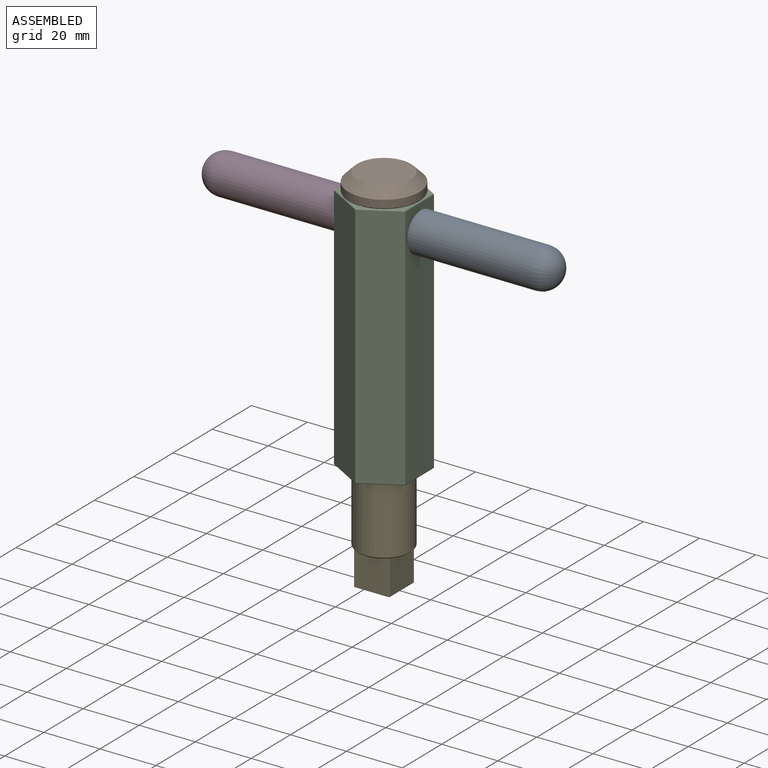
[diagram: assembled view]
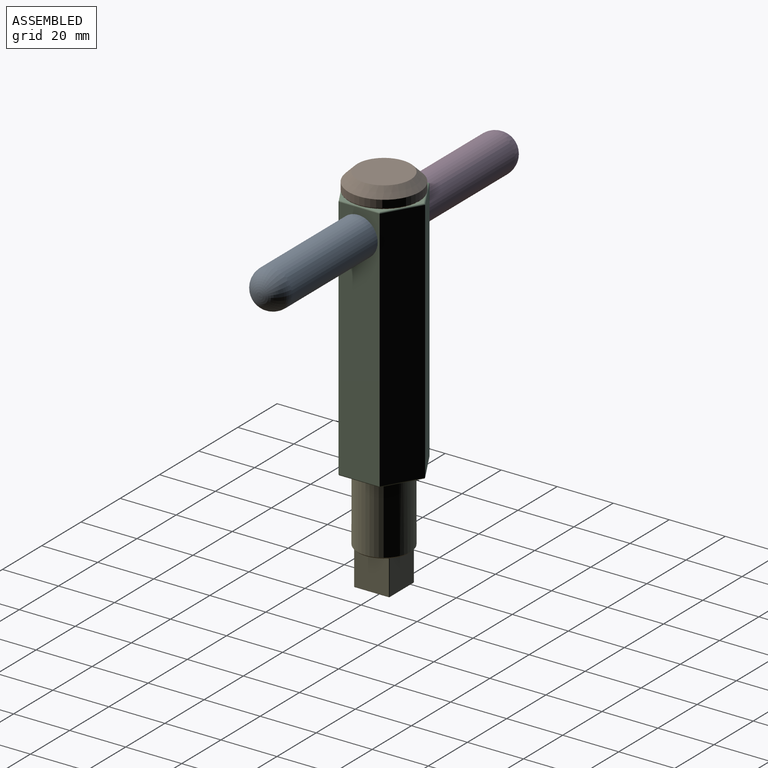
[diagram: assembled view, second angle]
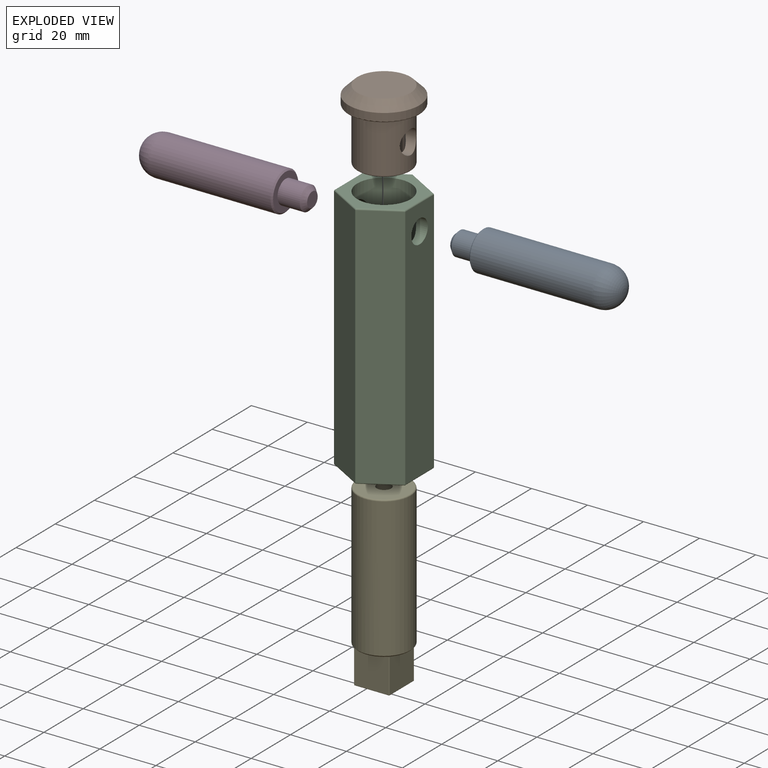
[diagram: exploded view]
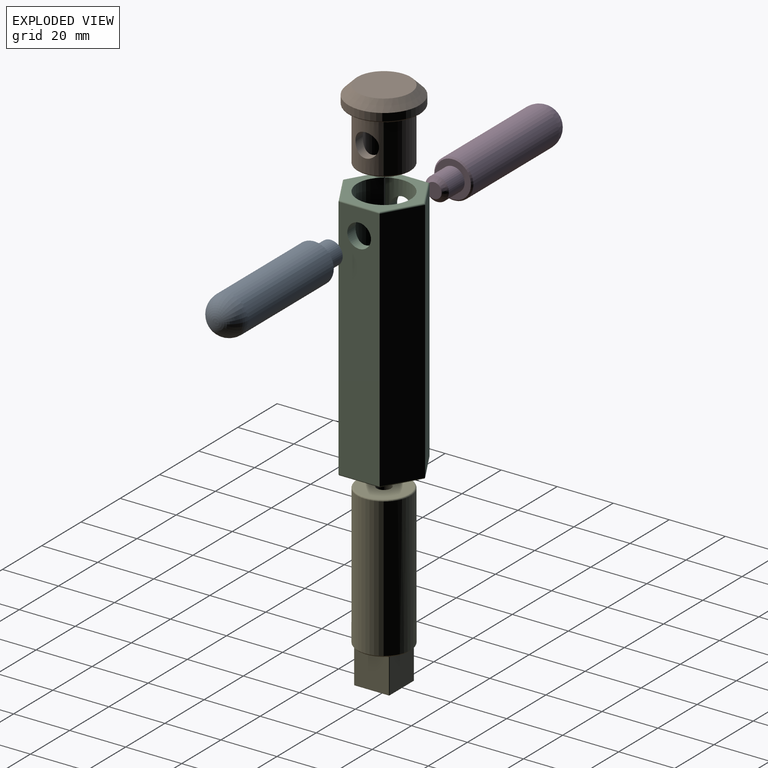
[diagram: exploded view, second angle]
ASSEMBLY  parts=5 mates=4
PART A: 8 faces, bbox 60.3x14x14 mm
  f0: cylinder r=4.22mm len=8.43mm, axis (1,0,0), area 212mm2, adj f4,f5
  f1: plane 5.39x5.38mm, normal (-1,0,0), area 22.8mm2, adj f5
  f2: cylinder r=6.99mm len=43.41mm, axis (-1,0,0), area 1905.1mm2, adj f6,f7
  f3: plane 0.2x0.2mm, normal (1,0,0), area 0mm2, adj f6
  f4: plane 12.95x12.95mm, normal (-1,0,0), area 75.9mm2, adj f0,f7
  f5: cone r=2.69mm half-angle=45deg, axis (1,0,0), area 46.8mm2, adj f0,f1
  f6: torus R=0.1mm, axis (1,0,0), area 304.6mm2, adj f2,f3
  f7: cone r=6.48mm half-angle=45deg, axis (1,0,0), area 30.4mm2, adj f2,f4
PART B: 12 faces, bbox 27.5x27.5x25.4 mm
  f0: cylinder r=6.35mm len=19.05mm, axis (0,0,1), area 640.9mm2, adj f2,f6,f7,f8
  f1: cylinder r=9.53mm len=19.05mm, axis (0,0,1), area 994.9mm2, adj f3,f7,f8,f11
  f2: plane 18.03x18.03mm, normal (0,0,-1), area 128.8mm2, adj f0,f11
  f3: plane 24.38x24.38mm, normal (0,0,-1), area 182mm2, adj f1,f10
  f4: plane 19.05x19.05mm, normal (0,0,1), area 285mm2, adj f9
  f5: cylinder r=12.7mm len=25.4mm, axis (0,0,-1), area 212.8mm2, adj f9,f10
  f6: plane 12.7x12.7mm, normal (0,0,-1), area 126.7mm2, adj f0
  f7: cylinder r=4.22mm len=8.43mm, axis (-1,0,0), area 91.7mm2, adj f0,f1
  f8: cylinder r=4.22mm len=8.43mm, axis (-1,0,0), area 91.7mm2, adj f0,f1
  f9: cone r=9.53mm half-angle=45deg, axis (0,0,-1), area 313.5mm2, adj f4,f5
  f10: torus R=12.19mm, axis (0,0,1), area 62.7mm2, adj f3,f5
  f11: torus R=9.02mm, axis (0,0,1), area 46.8mm2, adj f1,f2
PART C: 28 faces, bbox 25.4x29.3x88.9 mm
  f0: cylinder r=9.53mm len=50.8mm, axis (0,0,-1), area 2925.5mm2, adj f1,f12,f13,f14
  f1: plane 19.05x19.05mm, normal (0,0,1), area 264.6mm2, adj f0,f11
  f2: plane 87.88x14.66mm, normal (1,0,0), area 1232.9mm2, adj f3,f7,f13,f16,f24
  f3: plane 87.88x12.7mm, normal (0.5,0.87,0), area 1288.8mm2, adj f2,f4,f15,f22
  f4: plane 87.88x12.7mm, normal (-0.5,0.87,0), area 1288.8mm2, adj f3,f5,f17,f21
  f5: plane 87.88x14.66mm, normal (-1,0,0), area 1232.9mm2, adj f4,f6,f14,f19,f23
  f6: plane 87.88x12.7mm, normal (-0.5,-0.87,0), area 1288.8mm2, adj f5,f7,f20,f25
  f7: plane 87.88x12.7mm, normal (0.5,-0.87,0), area 1288.8mm2, adj f2,f6,f18,f26
  f8: cylinder r=9.53mm len=24.89mm, axis (0,0,-1), area 1489.7mm2, adj f10,f27
  f9: plane 28.16x24.38mm, normal (0,0,-1), area 198.7mm2, adj f21,f22,f23,f24,f25,f26,f27
  f10: plane 19.05x19.05mm, normal (0,0,-1), area 264.6mm2, adj f8,f11
  f11: cylinder r=2.55mm len=12.7mm, axis (0,0,-1), area 203.7mm2, adj f1,f10
  f12: plane 28.16x24.38mm, normal (0,0,1), area 229.9mm2, adj f0,f15,f16,f17,f18,f19,f20
  f13: cylinder r=4.22mm len=8.43mm, axis (-1,0,0), area 97mm2, adj f0,f2
  f14: cylinder r=4.22mm len=8.43mm, axis (-1,0,0), area 97mm2, adj f0,f5
  f15: cylinder r=0.51mm len=12.95mm, axis (0.87,-0.5,0), area 11.5mm2, adj f3,f12,f16,f17
  f16: cylinder r=0.51mm len=14.66mm, axis (0,-1,0), area 11.5mm2, adj f2,f12,f15,f18
  f17: cylinder r=0.51mm len=12.95mm, axis (0.87,0.5,0), area 11.5mm2, adj f4,f12,f15,f19
  f18: cylinder r=0.51mm len=12.95mm, axis (-0.87,-0.5,0), area 11.5mm2, adj f7,f12,f16,f20
  f19: cylinder r=0.51mm len=14.66mm, axis (0,1,0), area 11.5mm2, adj f5,f12,f17,f20
  f20: cylinder r=0.51mm len=12.95mm, axis (-0.87,0.5,0), area 11.5mm2, adj f6,f12,f18,f19
  f21: cylinder r=0.51mm len=12.95mm, axis (-0.87,-0.5,0), area 11.5mm2, adj f4,f9,f22,f23
  f22: cylinder r=0.51mm len=12.95mm, axis (-0.87,0.5,0), area 11.5mm2, adj f3,f9,f21,f24
  f23: cylinder r=0.51mm len=14.66mm, axis (0,-1,0), area 11.5mm2, adj f5,f9,f21,f25
  f24: cylinder r=0.51mm len=14.66mm, axis (0,1,0), area 11.5mm2, adj f2,f9,f22,f26
  f25: cylinder r=0.51mm len=12.95mm, axis (0.87,-0.5,0), area 11.5mm2, adj f6,f9,f23,f26
  f26: cylinder r=0.51mm len=12.95mm, axis (0.87,0.5,0), area 11.5mm2, adj f7,f9,f24,f25
  f27: torus R=10.03mm, axis (0,0,1), area 48.7mm2, adj f8,f9
PART D: 8 faces, bbox 60.3x14x14 mm
  f0: cylinder r=4.22mm len=8.43mm, axis (-1,0,0), area 212mm2, adj f4,f5
  f1: plane 5.39x5.38mm, normal (1,0,0), area 22.8mm2, adj f5
  f2: cylinder r=6.99mm len=43.41mm, axis (1,0,0), area 1905.1mm2, adj f6,f7
  f3: plane 0.2x0.2mm, normal (-1,0,0), area 0mm2, adj f6
  f4: plane 12.95x12.95mm, normal (1,0,0), area 75.9mm2, adj f0,f7
  f5: cone r=4.22mm half-angle=45deg, axis (-1,0,0), area 46.8mm2, adj f0,f1
  f6: torus R=0.1mm, axis (-1,0,0), area 304.6mm2, adj f2,f3
  f7: cone r=6.99mm half-angle=45deg, axis (-1,0,0), area 30.4mm2, adj f2,f4
PART E: 42 faces, bbox 20.6x20.6x63.5 mm
  f0: plane 12.29x2.42mm, normal (0,0,-1), area 20.4mm2, adj f15,f19,f24,f38
  f1: plane 12.29x2.42mm, normal (0,0,-1), area 20.4mm2, adj f15,f20,f25,f34
  f2: plane 12.29x2.42mm, normal (0,0,-1), area 20.4mm2, adj f25,f29,f31,f35
  f3: plane 12.19x12.19mm, normal (0,-1,0), area 148.6mm2, adj f18,f27,f28,f32
  f4: plane 12.19x12.19mm, normal (1,0,0), area 148.6mm2, adj f21,f26,f29,f32
  f5: plane 12.19x12.19mm, normal (0,1,0), area 148.6mm2, adj f13,f16,f20,f21
  f6: plane 12.19x12.19mm, normal (-1,0,0), area 148.6mm2, adj f13,f17,f18,f19
  f7: plane 12.19x12.19mm, normal (0,0,-1), area 148.6mm2, adj f16,f17,f26,f27
  f8: cylinder r=9.53mm len=49.78mm, axis (0,0,-1), area 2979.4mm2, adj f33,f34,f35,f36,f37,f38,f39,f40
  f9: plane 18.03x18.03mm, normal (0,0,1), area 235mm2, adj f12,f41
  f10: plane 12.29x2.42mm, normal (0,0,-1), area 20.4mm2, adj f24,f28,f31,f39
  f11: cone r=0mm half-angle=59deg, axis (0,0,1), area 23.9mm2, adj f12
  f12: cylinder r=2.55mm len=16.51mm, axis (0,0,1), area 264.8mm2, adj f9,f11
  f13: cylinder r=0.25mm len=12.19mm, axis (0,0,-1), area 4.9mm2, adj f5,f6,f14,f15
  f14: sphere r=0.25mm, area 0.1mm2, adj f13,f16,f17
  f15: torus R=0.51mm, axis (0,0,1), area 0.2mm2, adj f0,f1,f13,f19,f20,f36
  f16: cylinder r=0.25mm len=12.19mm, axis (1,0,0), area 4.9mm2, adj f5,f7,f14,f22
  f17: cylinder r=0.25mm len=12.19mm, axis (0,1,0), area 4.9mm2, adj f6,f7,f14,f23
  f18: cylinder r=0.25mm len=12.19mm, axis (0,0,1), area 4.9mm2, adj f3,f6,f23,f24
  f19: cylinder r=0.25mm len=12.19mm, axis (0,-1,0), area 4.9mm2, adj f0,f6,f15,f24
  f20: cylinder r=0.25mm len=12.19mm, axis (-1,0,0), area 4.9mm2, adj f1,f5,f15,f25
  f21: cylinder r=0.25mm len=12.19mm, axis (0,0,1), area 4.9mm2, adj f4,f5,f22,f25
  f22: sphere r=0.25mm, area 0.1mm2, adj f16,f21,f26
  f23: sphere r=0.25mm, area 0.1mm2, adj f17,f18,f27
  f24: torus R=0.51mm, axis (0,0,1), area 0.2mm2, adj f0,f10,f18,f19,f28,f40
  f25: torus R=0.51mm, axis (0,0,1), area 0.2mm2, adj f1,f2,f20,f21,f29,f33
  f26: cylinder r=0.25mm len=12.19mm, axis (0,-1,0), area 4.9mm2, adj f4,f7,f22,f30
  f27: cylinder r=0.25mm len=12.19mm, axis (-1,0,0), area 4.9mm2, adj f3,f7,f23,f30
  f28: cylinder r=0.25mm len=12.19mm, axis (1,0,0), area 4.9mm2, adj f3,f10,f24,f31
  f29: cylinder r=0.25mm len=12.19mm, axis (0,1,0), area 4.9mm2, adj f2,f4,f25,f31
  f30: sphere r=0.25mm, area 0.1mm2, adj f26,f27,f32
  f31: torus R=0.51mm, axis (0,0,1), area 0.2mm2, adj f2,f10,f28,f29,f32,f37
  f32: cylinder r=0.25mm len=12.19mm, axis (0,0,-1), area 4.9mm2, adj f3,f4,f30,f31
  f33: bspline ~0.83x0.83mm, area 0.5mm2, adj f8,f25,f34,f35
  f34: cone r=9.53mm half-angle=45deg, axis (0,0,1), area 10mm2, adj f1,f8,f33,f36
  f35: cone r=9.53mm half-angle=45deg, axis (0,0,1), area 10mm2, adj f2,f8,f33,f37
  f36: bspline ~0.83x0.83mm, area 0.5mm2, adj f8,f15,f34,f38
  f37: bspline ~0.83x0.83mm, area 0.5mm2, adj f8,f31,f35,f39
  f38: cone r=9.53mm half-angle=45deg, axis (0,0,1), area 10mm2, adj f0,f8,f36,f40
  f39: cone r=9.53mm half-angle=45deg, axis (0,0,1), area 10mm2, adj f8,f10,f37,f40
  f40: bspline ~0.83x0.83mm, area 0.5mm2, adj f8,f24,f38,f39
  f41: torus R=9.02mm, axis (0,0,1), area 46.8mm2, adj f8,f9
PLACE A at identity
PLACE B t=(25.4,0,-25.4)mm
PLACE C t=(25.4,0,0)mm
PLACE D t=(50.8,0,0)mm
PLACE E t=(25.4,0,50.8)mm
MATE fastened C.f0 <-> B.f1  axis (0,0,1) through (25.4,0,165.1)mm
MATE fastened D.f0 <-> C.f13  axis (1,0,0) through (22.22,0,155.58)mm
MATE fastened C.f13 <-> A.f0  axis (1,0,0) through (38.1,0,155.58)mm
MATE fastened E.f11 <-> C.f0  axis (0,0,1) through (25.4,0,101.6)mm
